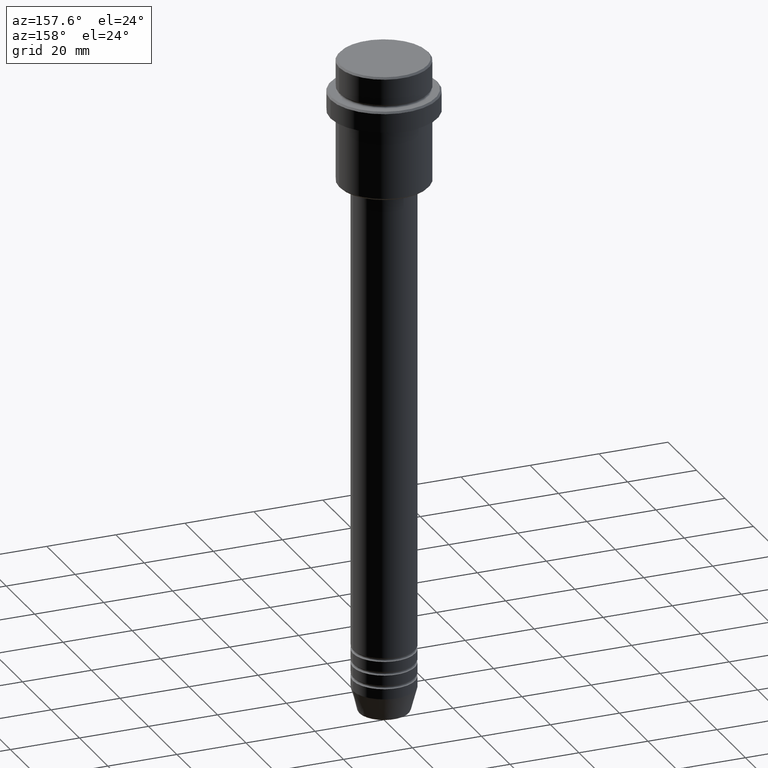
[diagram: clean part render]
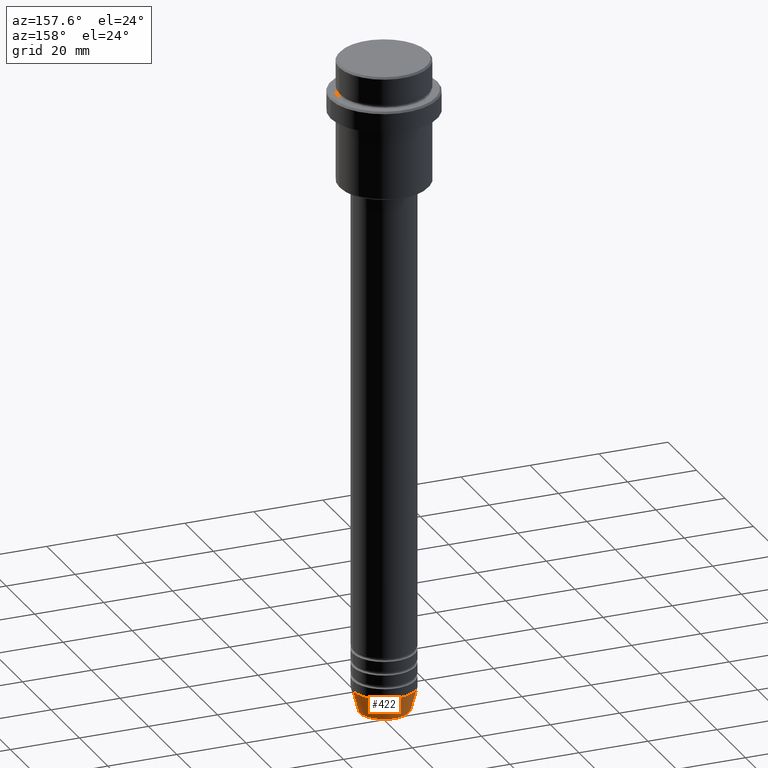
[diagram: same view with one face highlighted and labeled with its STEP entity id]
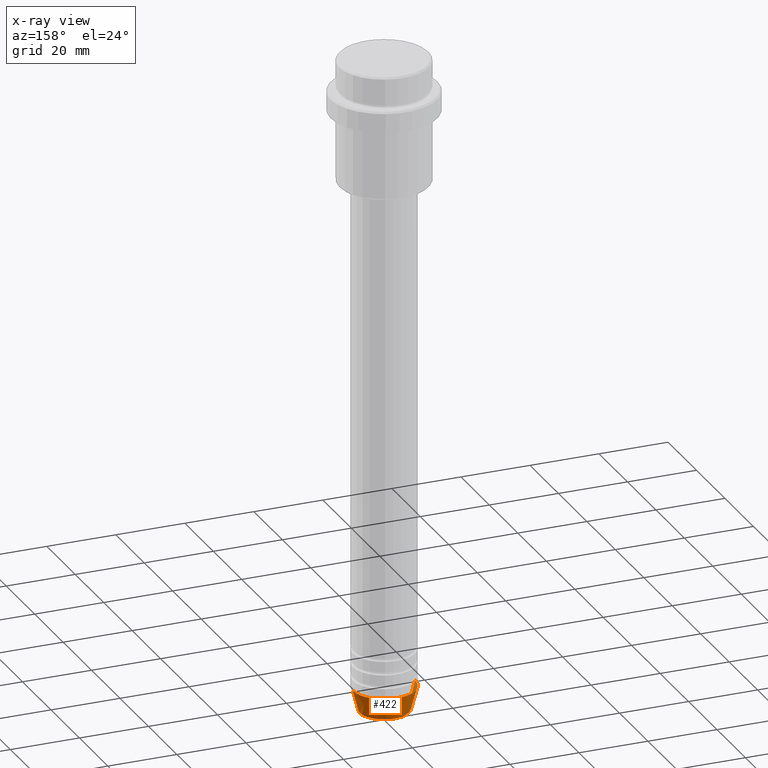
[diagram: x-ray of the same camera — body ghosted, the highlighted face saturated]
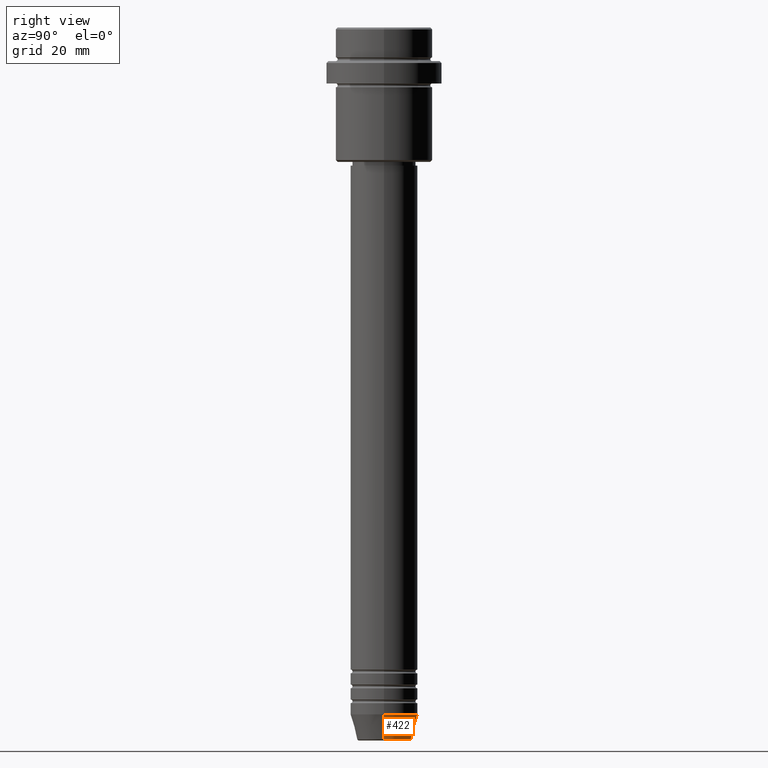
[diagram: same view with one face highlighted and labeled with its STEP entity id]
A machine part, auxiliary view. The second image highlights one B-rep face of the part: STEP entity #422.
The next image is the same camera in x-ray: the body ghosted, the highlighted face saturated — about 0% of this face is hidden behind the body in this view.
A second angle (right view) of the same face is appended — the face is thin or edge-on in the first view.
In plain terms, the highlighted conical surface has half-angle 15 deg.
Its self-contained STEP definition (entity closure, byte-faithful):
#6 = FACE_OUTER_BOUND ( 'NONE', #756, .T. ) ;
#29 = VERTEX_POINT ( 'NONE', #584 ) ;
#42 = CARTESIAN_POINT ( 'NONE',  ( -9.000000000000000000, 1.102182119232617714E-15, -184.0000000000000000 ) ) ;
#43 = DIRECTION ( 'NONE',  ( -0.000000000000000000, -0.000000000000000000, 1.000000000000000000 ) ) ;
#80 = VERTEX_POINT ( 'NONE', #603 ) ;
#95 = ORIENTED_EDGE ( 'NONE', *, *, #481, .F. ) ;
#240 = ORIENTED_EDGE ( 'NONE', *, *, #643, .T. ) ;
#254 = VERTEX_POINT ( 'NONE', #1302 ) ;
#292 = AXIS2_PLACEMENT_3D ( 'NONE', #1143, #43, #396 ) ;
#396 = DIRECTION ( 'NONE',  ( 1.000000000000000000, 0.000000000000000000, 0.000000000000000000 ) ) ;
#399 = DIRECTION ( 'NONE',  ( -0.000000000000000000, -0.000000000000000000, 1.000000000000000000 ) ) ;
#422 = ADVANCED_FACE ( 'NONE', ( #6 ), #1109, .T. ) ;
#425 = CARTESIAN_POINT ( 'NONE',  ( 9.000000000000000000, 0.000000000000000000, -184.0000000000000000 ) ) ;
#481 = EDGE_CURVE ( 'NONE', #583, #29, #573, .T. ) ;
#505 = AXIS2_PLACEMENT_3D ( 'NONE', #1083, #1211, #669 ) ;
#572 = VECTOR ( 'NONE', #1125, 1000.000000000000000 ) ;
#573 = CIRCLE ( 'NONE', #292, 9.000000000000000000 ) ;
#583 = VERTEX_POINT ( 'NONE', #425 ) ;
#584 = CARTESIAN_POINT ( 'NONE',  ( -9.000000000000000000, 1.102182119232617714E-15, -184.0000000000000000 ) ) ;
#600 = AXIS2_PLACEMENT_3D ( 'NONE', #615, #399, #720 ) ;
#602 = LINE ( 'NONE', #977, #1205 ) ;
#603 = CARTESIAN_POINT ( 'NONE',  ( -7.223655072137189492, 9.934123627281765110E-16, -190.6294095225512706 ) ) ;
#609 = EDGE_CURVE ( 'NONE', #254, #583, #602, .T. ) ;
#615 = CARTESIAN_POINT ( 'NONE',  ( 0.000000000000000000, 0.000000000000000000, -190.6294095225512706 ) ) ;
#625 = ORIENTED_EDGE ( 'NONE', *, *, #609, .F. ) ;
#643 = EDGE_CURVE ( 'NONE', #254, #80, #1085, .T. ) ;
#669 = DIRECTION ( 'NONE',  ( 1.000000000000000000, 0.000000000000000000, 0.000000000000000000 ) ) ;
#720 = DIRECTION ( 'NONE',  ( 1.000000000000000000, 0.000000000000000000, 0.000000000000000000 ) ) ;
#756 = EDGE_LOOP ( 'NONE', ( #240, #783, #95, #625 ) ) ;
#783 = ORIENTED_EDGE ( 'NONE', *, *, #1384, .T. ) ;
#961 = DIRECTION ( 'NONE',  ( 0.2588190451025213501, 0.000000000000000000, 0.9659258262890680902 ) ) ;
#977 = CARTESIAN_POINT ( 'NONE',  ( 9.000000000000000000, 0.000000000000000000, -184.0000000000000000 ) ) ;
#1083 = CARTESIAN_POINT ( 'NONE',  ( 0.000000000000000000, 0.000000000000000000, -184.0000000000000000 ) ) ;
#1085 = CIRCLE ( 'NONE', #600, 7.223655072137188604 ) ;
#1109 = CONICAL_SURFACE ( 'NONE', #505, 9.000000000000000000, 0.2617993877991500740 ) ;
#1125 = DIRECTION ( 'NONE',  ( -0.2588190451025213501, 3.169619151431772337E-17, 0.9659258262890680902 ) ) ;
#1143 = CARTESIAN_POINT ( 'NONE',  ( 0.000000000000000000, 0.000000000000000000, -184.0000000000000000 ) ) ;
#1205 = VECTOR ( 'NONE', #961, 1000.000000000000000 ) ;
#1211 = DIRECTION ( 'NONE',  ( -0.000000000000000000, -0.000000000000000000, 1.000000000000000000 ) ) ;
#1248 = LINE ( 'NONE', #42, #572 ) ;
#1302 = CARTESIAN_POINT ( 'NONE',  ( 7.223655072137188604, 0.000000000000000000, -190.6294095225512706 ) ) ;
#1384 = EDGE_CURVE ( 'NONE', #80, #29, #1248, .T. ) ;